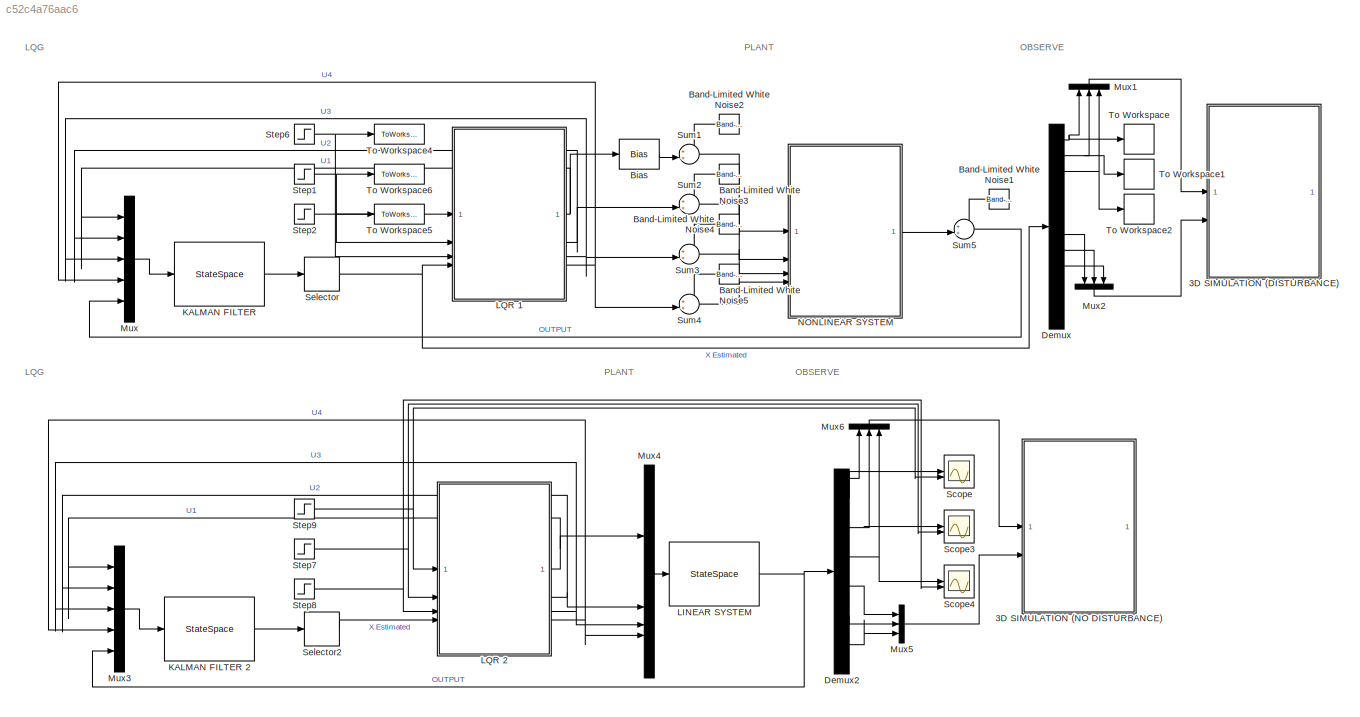
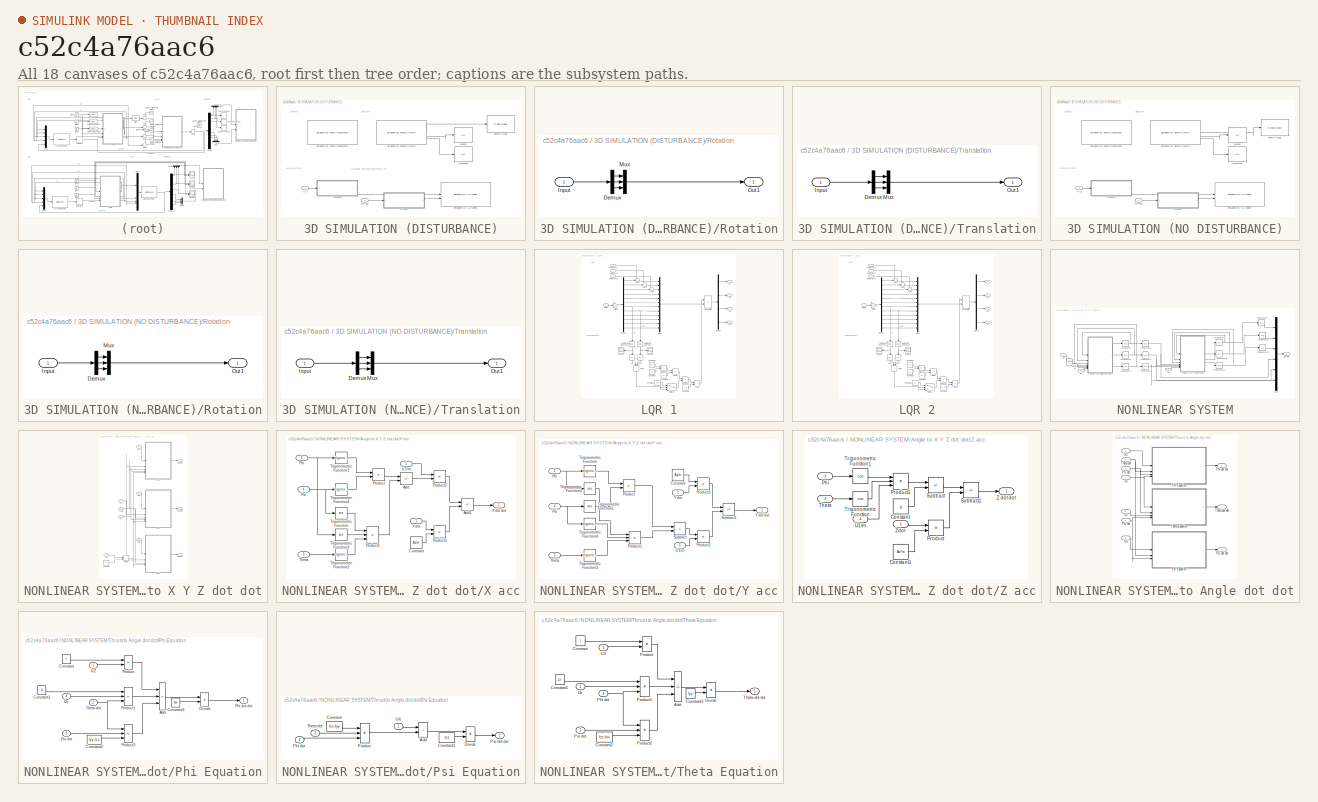
[diagram: thumbnail index - all 18 canvases of the model, root first then tree order]
MODEL slx_c52c4a76aac6
KIND model
CONFIG AbsTol = auto
CONFIG EnableMultiTasking = off
CONFIG FixedStep = auto
CONFIG MaxStep = auto
CONFIG MinStep = auto
CONFIG RelTol = 1e-3
CONFIG SampleTimeConstraint = Unconstrained
CONFIG SolverName = VariableStepAuto
CONFIG StartTime = 0.0
CONFIG StopTime = 20
BLOCK [SubSystem] 3D SIMULATION (DISTURBANCE)
BLOCK [Inport] 3D SIMULATION (DISTURBANCE)/ANGLES
  Port = 2
BLOCK [Reference] 3D SIMULATION (DISTURBANCE)/Fisheye Image  REF=visionsinks/To Video Display
  SourceBlock = visionsinks/To Video Display
  SourceType = To Video Display
BLOCK [Display] 3D SIMULATION (DISTURBANCE)/Location
  Decimation = 1
BLOCK [Display] 3D SIMULATION (DISTURBANCE)/Orientation
  Decimation = 1
BLOCK [SubSystem] 3D SIMULATION (DISTURBANCE)/Rotation
BLOCK [Demux] 3D SIMULATION (DISTURBANCE)/Rotation/Demux
  Outputs = 3
BLOCK [Inport] 3D SIMULATION (DISTURBANCE)/Rotation/Input
BLOCK [Mux] 3D SIMULATION (DISTURBANCE)/Rotation/Mux
  DisplayOption = bar
  Inputs = 3
BLOCK [Outport] 3D SIMULATION (DISTURBANCE)/Rotation/Out1
BLOCK [Reference] 3D SIMULATION (DISTURBANCE)/Simulation 3D Fisheye Camera  REF=sim3dcameralib/Simulation 3D Fisheye Camera
  Priority = 1
  SourceBlock = sim3dcameralib/Simulation 3D Fisheye Camera
  SourceType = Simulation 3D Fisheye Camera
BLOCK [Reference] 3D SIMULATION (DISTURBANCE)/Simulation 3D Scene Configuration  REF=sim3dlib/Simulation 3D Scene Configuration
  Priority = 0
  SourceBlock = sim3dlib/Simulation 3D Scene Configuration
  SourceType = Simulation 3D Scene Configuration
BLOCK [Reference] 3D SIMULATION (DISTURBANCE)/Simulation 3D UAV Vehicle  REF=uavsim3dlib/Simulation 3D UAV Vehicle
  SourceBlock = uavsim3dlib/Simulation 3D UAV Vehicle
  SourceType = Simulation 3D UAV Vehicle
BLOCK [SubSystem] 3D SIMULATION (DISTURBANCE)/Translation
BLOCK [Demux] 3D SIMULATION (DISTURBANCE)/Translation/Demux
  Outputs = 3
BLOCK [Inport] 3D SIMULATION (DISTURBANCE)/Translation/Input
BLOCK [Mux] 3D SIMULATION (DISTURBANCE)/Translation/Mux
  DisplayOption = bar
  Inputs = 3
BLOCK [Outport] 3D SIMULATION (DISTURBANCE)/Translation/Out1
BLOCK [Inport] 3D SIMULATION (DISTURBANCE)/X Y Z
BLOCK [SubSystem] 3D SIMULATION (NO DISTURBANCE)
  Commented = on
BLOCK [Inport] 3D SIMULATION (NO DISTURBANCE)/ANGLES
  Port = 2
BLOCK [Reference] 3D SIMULATION (NO DISTURBANCE)/Fisheye Image  REF=visionsinks/To Video Display
  SourceBlock = visionsinks/To Video Display
  SourceType = To Video Display
BLOCK [Display] 3D SIMULATION (NO DISTURBANCE)/Location
  Decimation = 1
BLOCK [Display] 3D SIMULATION (NO DISTURBANCE)/Orientation
  Decimation = 1
BLOCK [SubSystem] 3D SIMULATION (NO DISTURBANCE)/Rotation
BLOCK [Demux] 3D SIMULATION (NO DISTURBANCE)/Rotation/Demux
  Outputs = 3
BLOCK [Inport] 3D SIMULATION (NO DISTURBANCE)/Rotation/Input
BLOCK [Mux] 3D SIMULATION (NO DISTURBANCE)/Rotation/Mux
  DisplayOption = bar
  Inputs = 3
BLOCK [Outport] 3D SIMULATION (NO DISTURBANCE)/Rotation/Out1
BLOCK [Reference] 3D SIMULATION (NO DISTURBANCE)/Simulation 3D Fisheye Camera  REF=sim3dcameralib/Simulation 3D Fisheye Camera
  Priority = 1
  SourceBlock = sim3dcameralib/Simulation 3D Fisheye Camera
  SourceType = Simulation 3D Fisheye Camera
BLOCK [Reference] 3D SIMULATION (NO DISTURBANCE)/Simulation 3D Scene Configuration  REF=sim3dlib/Simulation 3D Scene Configuration
  Priority = 0
  SourceBlock = sim3dlib/Simulation 3D Scene Configuration
  SourceType = Simulation 3D Scene Configuration
BLOCK [Reference] 3D SIMULATION (NO DISTURBANCE)/Simulation 3D UAV Vehicle  REF=uavsim3dlib/Simulation 3D UAV Vehicle
  SourceBlock = uavsim3dlib/Simulation 3D UAV Vehicle
  SourceType = Simulation 3D UAV Vehicle
BLOCK [SubSystem] 3D SIMULATION (NO DISTURBANCE)/Translation
BLOCK [Demux] 3D SIMULATION (NO DISTURBANCE)/Translation/Demux
  Outputs = 3
BLOCK [Inport] 3D SIMULATION (NO DISTURBANCE)/Translation/Input
BLOCK [Mux] 3D SIMULATION (NO DISTURBANCE)/Translation/Mux
  DisplayOption = bar
  Inputs = 3
BLOCK [Outport] 3D SIMULATION (NO DISTURBANCE)/Translation/Out1
BLOCK [Inport] 3D SIMULATION (NO DISTURBANCE)/X Y Z
BLOCK [Reference] Band-Limited White Noise1  REF=simulink/Sources/Band-Limited
White Noise
  NameLocation = top
  SourceBlock = simulink/Sources/Band-Limited\nWhite Noise
  SourceType = Band-Limited White Noise.
BLOCK [Reference] Band-Limited White Noise2  REF=simulink/Sources/Band-Limited
White Noise
  NameLocation = top
  SourceBlock = simulink/Sources/Band-Limited\nWhite Noise
  SourceType = Band-Limited White Noise.
BLOCK [Reference] Band-Limited White Noise3  REF=simulink/Sources/Band-Limited
White Noise
  NameLocation = top
  SourceBlock = simulink/Sources/Band-Limited\nWhite Noise
  SourceType = Band-Limited White Noise.
BLOCK [Reference] Band-Limited White Noise4  REF=simulink/Sources/Band-Limited
White Noise
  NameLocation = top
  SourceBlock = simulink/Sources/Band-Limited\nWhite Noise
  SourceType = Band-Limited White Noise.
BLOCK [Reference] Band-Limited White Noise5  REF=simulink/Sources/Band-Limited
White Noise
  NameLocation = top
  SourceBlock = simulink/Sources/Band-Limited\nWhite Noise
  SourceType = Band-Limited White Noise.
BLOCK [Bias] Bias
  Bias = m*g
  SaturateOnIntegerOverflow = off
BLOCK [Demux] Demux
  Outputs = 12
BLOCK [Demux] Demux2
  Outputs = 6
BLOCK [StateSpace] KALMAN FILTER
  A = sysK.A
  B = sysK.B
  C = sysK.C
  D = sysK.D
  InitialCondition = 0
BLOCK [StateSpace] KALMAN FILTER 2
  A = sysK.A
  B = sysK.B
  C = sysK.C
  D = sysK.D
  InitialCondition = 0
BLOCK [StateSpace] LINEAR SYSTEM
  A = A
  B = B
  C = C
  D = D
  InitialCondition = 0
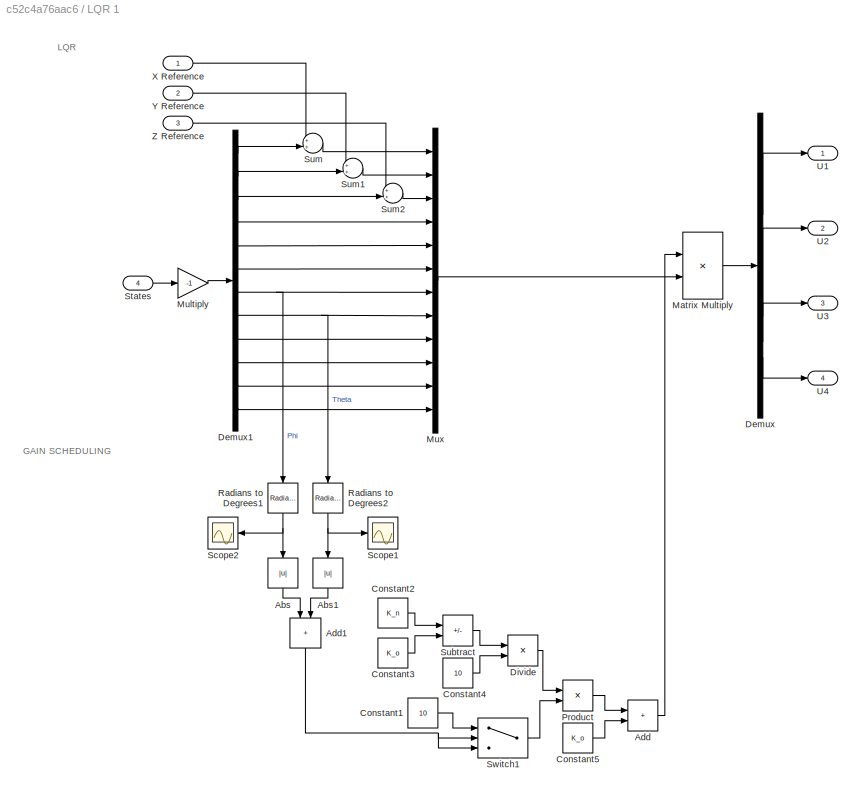
BLOCK [SubSystem] LQR 1
BLOCK [Abs] LQR 1/Abs
  NameLocation = left
  SaturateOnIntegerOverflow = off
BLOCK [Abs] LQR 1/Abs1
  NameLocation = left
  SaturateOnIntegerOverflow = off
BLOCK [Sum] LQR 1/Add
  IconShape = rectangular
BLOCK [Sum] LQR 1/Add1
  IconShape = rectangular
  NameLocation = left
BLOCK [Constant] LQR 1/Constant1
  Value = 10
BLOCK [Constant] LQR 1/Constant2
  Value = K_n
BLOCK [Constant] LQR 1/Constant3
  Value = K_o
BLOCK [Constant] LQR 1/Constant4
  Value = 10
BLOCK [Constant] LQR 1/Constant5
  Value = K_o
BLOCK [Demux] LQR 1/Demux
BLOCK [Demux] LQR 1/Demux1
  Outputs = 12
BLOCK [Product] LQR 1/Divide
  Inputs = */
BLOCK [Product] LQR 1/Matrix Multiply
  Multiplication = Matrix(*)
BLOCK [Gain] LQR 1/Multiply
  Gain = -1
BLOCK [Mux] LQR 1/Mux
  DisplayOption = bar
  Inputs = 12
BLOCK [Product] LQR 1/Product
BLOCK [Reference] LQR 1/Radians to Degrees1  REF=simulink_extras/Transformations/Radians
to Degrees
  NameLocation = left
  SourceBlock = simulink_extras/Transformations/Radians\nto Degrees
  SourceType = RadiansToDegrees
BLOCK [Reference] LQR 1/Radians to Degrees2  REF=simulink_extras/Transformations/Radians
to Degrees
  NameLocation = left
  SourceBlock = simulink_extras/Transformations/Radians\nto Degrees
  SourceType = RadiansToDegrees
BLOCK [Scope] LQR 1/Scope1
  Floating = off
  NumInputPorts = 1
  ScopeSpecificationString = Simulink.scopes.TimeScopeBlockCfg('CurrentConfiguration', extmgr.ConfigurationSet(extmgr.Configuration('Core','General UI',true),extmgr.Configuration('Core','Source UI',true),extmgr.Configuration('Sources','WiredSimulink',true,'DataLoggingVariableName','ScopeData7'),extmgr.Configuration('Visuals','Time Domain',true,'SerializedDisplays',{struct('MinYLimReal','-29.51608','MaxYLimReal','30.71325','YL...<+1384ch>
BLOCK [Scope] LQR 1/Scope2
  Floating = off
  NameLocation = top
  NumInputPorts = 1
  ScopeSpecificationString = Simulink.scopes.TimeScopeBlockCfg('CurrentConfiguration', extmgr.ConfigurationSet(extmgr.Configuration('Core','General UI',true),extmgr.Configuration('Core','Source UI',true),extmgr.Configuration('Sources','WiredSimulink',true,'DataLoggingVariableName','ScopeData8'),extmgr.Configuration('Visuals','Time Domain',true,'SerializedDisplays',{struct('MinYLimReal','-36.9835','MaxYLimReal','35.28353','YLa...<+1380ch>
BLOCK [Inport] LQR 1/States
  Port = 4
BLOCK [Sum] LQR 1/Subtract
  IconShape = rectangular
  Inputs = +-
BLOCK [Sum] LQR 1/Sum
  Inputs = ++|
BLOCK [Sum] LQR 1/Sum1
  Inputs = ++|
BLOCK [Sum] LQR 1/Sum2
  Inputs = ++|
BLOCK [Switch] LQR 1/Switch1
  Criteria = u2 > Threshold
  InputSameDT = off
  SaturateOnIntegerOverflow = off
  Threshold = 10
BLOCK [Outport] LQR 1/U1
BLOCK [Outport] LQR 1/U2
  Port = 2
BLOCK [Outport] LQR 1/U3
  Port = 3
BLOCK [Outport] LQR 1/U4
  Port = 4
BLOCK [Inport] LQR 1/X Reference
BLOCK [Inport] LQR 1/Y Reference
  Port = 2
BLOCK [Inport] LQR 1/Z Reference
  Port = 3
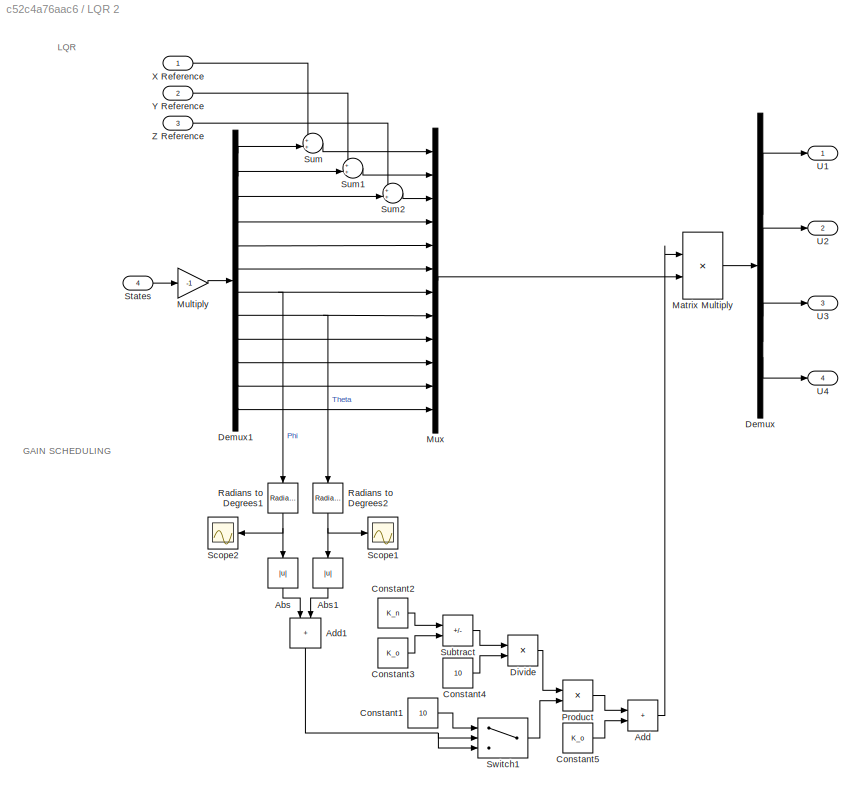
BLOCK [SubSystem] LQR 2
BLOCK [Abs] LQR 2/Abs
  NameLocation = left
  SaturateOnIntegerOverflow = off
BLOCK [Abs] LQR 2/Abs1
  NameLocation = left
  SaturateOnIntegerOverflow = off
BLOCK [Sum] LQR 2/Add
  IconShape = rectangular
BLOCK [Sum] LQR 2/Add1
  IconShape = rectangular
  NameLocation = left
BLOCK [Constant] LQR 2/Constant1
  Value = 10
BLOCK [Constant] LQR 2/Constant2
  Value = K_n
BLOCK [Constant] LQR 2/Constant3
  Value = K_o
BLOCK [Constant] LQR 2/Constant4
  Value = 10
BLOCK [Constant] LQR 2/Constant5
  Value = K_o
BLOCK [Demux] LQR 2/Demux
BLOCK [Demux] LQR 2/Demux1
  Outputs = 12
BLOCK [Product] LQR 2/Divide
  Inputs = */
BLOCK [Product] LQR 2/Matrix Multiply
  Multiplication = Matrix(*)
BLOCK [Gain] LQR 2/Multiply
  Gain = -1
BLOCK [Mux] LQR 2/Mux
  DisplayOption = bar
  Inputs = 12
BLOCK [Product] LQR 2/Product
BLOCK [Reference] LQR 2/Radians to Degrees1  REF=simulink_extras/Transformations/Radians
to Degrees
  NameLocation = left
  SourceBlock = simulink_extras/Transformations/Radians\nto Degrees
  SourceType = RadiansToDegrees
BLOCK [Reference] LQR 2/Radians to Degrees2  REF=simulink_extras/Transformations/Radians
to Degrees
  NameLocation = left
  SourceBlock = simulink_extras/Transformations/Radians\nto Degrees
  SourceType = RadiansToDegrees
BLOCK [Scope] LQR 2/Scope1
  Floating = off
  NumInputPorts = 1
  ScopeSpecificationString = Simulink.scopes.TimeScopeBlockCfg('CurrentConfiguration', extmgr.ConfigurationSet(extmgr.Configuration('Core','General UI',true),extmgr.Configuration('Core','Source UI',true),extmgr.Configuration('Sources','WiredSimulink',true,'DataLoggingVariableName','ScopeData1'),extmgr.Configuration('Visuals','Time Domain',true,'SerializedDisplays',{struct('MinYLimReal','-29.51608','MaxYLimReal','30.71325','YL...<+1384ch>
BLOCK [Scope] LQR 2/Scope2
  Floating = off
  NameLocation = top
  NumInputPorts = 1
  ScopeSpecificationString = Simulink.scopes.TimeScopeBlockCfg('CurrentConfiguration', extmgr.ConfigurationSet(extmgr.Configuration('Core','General UI',true),extmgr.Configuration('Core','Source UI',true),extmgr.Configuration('Sources','WiredSimulink',true,'DataLoggingVariableName','ScopeData2'),extmgr.Configuration('Visuals','Time Domain',true,'SerializedDisplays',{struct('MinYLimReal','-36.9835','MaxYLimReal','35.28353','YLa...<+1380ch>
BLOCK [Inport] LQR 2/States
  Port = 4
BLOCK [Sum] LQR 2/Subtract
  IconShape = rectangular
  Inputs = +-
BLOCK [Sum] LQR 2/Sum
  Inputs = ++|
BLOCK [Sum] LQR 2/Sum1
  Inputs = ++|
BLOCK [Sum] LQR 2/Sum2
  Inputs = ++|
BLOCK [Switch] LQR 2/Switch1
  Criteria = u2 > Threshold
  InputSameDT = off
  SaturateOnIntegerOverflow = off
  Threshold = 10
BLOCK [Outport] LQR 2/U1
BLOCK [Outport] LQR 2/U2
  Port = 2
BLOCK [Outport] LQR 2/U3
  Port = 3
BLOCK [Outport] LQR 2/U4
  Port = 4
BLOCK [Inport] LQR 2/X Reference
BLOCK [Inport] LQR 2/Y Reference
  Port = 2
BLOCK [Inport] LQR 2/Z Reference
  Port = 3
BLOCK [Mux] Mux
  DisplayOption = bar
  Inputs = 5
BLOCK [Mux] Mux1
  DisplayOption = bar
  Inputs = 3
  NameLocation = right
BLOCK [Mux] Mux2
  DisplayOption = bar
  Inputs = 3
  NameLocation = left
BLOCK [Mux] Mux3
  DisplayOption = bar
  Inputs = 5
BLOCK [Mux] Mux4
  DisplayOption = bar
BLOCK [Mux] Mux5
  DisplayOption = bar
  Inputs = 3
BLOCK [Mux] Mux6
  DisplayOption = bar
  Inputs = 3
  NameLocation = right
BLOCK [SubSystem] NONLINEAR SYSTEM
  PortSchema = {"entries":[{"content":{"sides":[{"content":{"connectorIds":["In1","In2","In3","In4"]},"type":"ConnectorPlacement.EquallySpacedRectSide","uuid":"a5503451-5a23-4017-b645-9eb3d3f2dd65"},{"content":{"connectorIds":["Out1"],"side":"RIGHT"},"type":"ConnectorPlacement.EquallySpacedRectSide","uuid":"5f9284f0-a452-4177-bce3-aee519bf0d63"},{"content":{"side":"TOP"},"type":"ConnectorPlacement.EquallySpacedR...<+389ch>
BLOCK [SubSystem] NONLINEAR SYSTEM/Angle to X Y Z dot dot
BLOCK [Constant] NONLINEAR SYSTEM/Angle to X Y Z dot dot/Constant
  Value = m
BLOCK [Product] NONLINEAR SYSTEM/Angle to X Y Z dot dot/Divide
  Inputs = */
BLOCK [Inport] NONLINEAR SYSTEM/Angle to X Y Z dot dot/Phi
  Port = 4
BLOCK [Inport] NONLINEAR SYSTEM/Angle to X Y Z dot dot/Psi
  Port = 6
BLOCK [Inport] NONLINEAR SYSTEM/Angle to X Y Z dot dot/Theta
  Port = 5
BLOCK [Inport] NONLINEAR SYSTEM/Angle to X Y Z dot dot/U1
  Port = 7
BLOCK [SubSystem] NONLINEAR SYSTEM/Angle to X Y Z dot dot/X acc
BLOCK [Sum] NONLINEAR SYSTEM/Angle to X Y Z dot dot/X acc/Add
  IconShape = rectangular
  Inputs = +-
BLOCK [Sum] NONLINEAR SYSTEM/Angle to X Y Z dot dot/X acc/Add1
  IconShape = rectangular
  Inputs = +-
BLOCK [Constant] NONLINEAR SYSTEM/Angle to X Y Z dot dot/X acc/Constant
  Value = Ax/m
BLOCK [Inport] NONLINEAR SYSTEM/Angle to X Y Z dot dot/X acc/Phi
  Port = 2
BLOCK [Product] NONLINEAR SYSTEM/Angle to X Y Z dot dot/X acc/Product
BLOCK [Product] NONLINEAR SYSTEM/Angle to X Y Z dot dot/X acc/Product1
  Inputs = 3
BLOCK [Product] NONLINEAR SYSTEM/Angle to X Y Z dot dot/X acc/Product2
BLOCK [Product] NONLINEAR SYSTEM/Angle to X Y Z dot dot/X acc/Product3
BLOCK [Inport] NONLINEAR SYSTEM/Angle to X Y Z dot dot/X acc/Psi
  Port = 4
BLOCK [Inport] NONLINEAR SYSTEM/Angle to X Y Z dot dot/X acc/Theta
  Port = 3
BLOCK [Trigonometry] NONLINEAR SYSTEM/Angle to X Y Z dot dot/X acc/Trigonometric Function
  Operator = cos
BLOCK [Trigonometry] NONLINEAR SYSTEM/Angle to X Y Z dot dot/X acc/Trigonometric Function1
BLOCK [Trigonometry] NONLINEAR SYSTEM/Angle to X Y Z dot dot/X acc/Trigonometric Function2
BLOCK [Trigonometry] NONLINEAR SYSTEM/Angle to X Y Z dot dot/X acc/Trigonometric Function3
  Operator = cos
BLOCK [Trigonometry] NONLINEAR SYSTEM/Angle to X Y Z dot dot/X acc/Trigonometric Function4
BLOCK [Inport] NONLINEAR SYSTEM/Angle to X Y Z dot dot/X acc/U1//m
  Port = 5
BLOCK [Inport] NONLINEAR SYSTEM/Angle to X Y Z dot dot/X acc/X dot
BLOCK [Outport] NONLINEAR SYSTEM/Angle to X Y Z dot dot/X acc/X dot dot
BLOCK [Inport] NONLINEAR SYSTEM/Angle to X Y Z dot dot/X dot
BLOCK [Outport] NONLINEAR SYSTEM/Angle to X Y Z dot dot/X dot dot
BLOCK [SubSystem] NONLINEAR SYSTEM/Angle to X Y Z dot dot/Y acc
BLOCK [Constant] NONLINEAR SYSTEM/Angle to X Y Z dot dot/Y acc/Constant
  Value = Ay/m
BLOCK [Inport] NONLINEAR SYSTEM/Angle to X Y Z dot dot/Y acc/Phi
  Port = 2
BLOCK [Product] NONLINEAR SYSTEM/Angle to X Y Z dot dot/Y acc/Product
BLOCK [Product] NONLINEAR SYSTEM/Angle to X Y Z dot dot/Y acc/Product1
  Inputs = 3
BLOCK [Product] NONLINEAR SYSTEM/Angle to X Y Z dot dot/Y acc/Product2
BLOCK [Product] NONLINEAR SYSTEM/Angle to X Y Z dot dot/Y acc/Product3
BLOCK [Inport] NONLINEAR SYSTEM/Angle to X Y Z dot dot/Y acc/Psi
  Port = 4
BLOCK [Sum] NONLINEAR SYSTEM/Angle to X Y Z dot dot/Y acc/Subtract
  IconShape = rectangular
BLOCK [Sum] NONLINEAR SYSTEM/Angle to X Y Z dot dot/Y acc/Subtract1
  IconShape = rectangular
  Inputs = -+
BLOCK [Inport] NONLINEAR SYSTEM/Angle to X Y Z dot dot/Y acc/Theta
  Port = 3
BLOCK [Trigonometry] NONLINEAR SYSTEM/Angle to X Y Z dot dot/Y acc/Trigonometric Function
BLOCK [Trigonometry] NONLINEAR SYSTEM/Angle to X Y Z dot dot/Y acc/Trigonometric Function1
  Operator = cos
BLOCK [Trigonometry] NONLINEAR SYSTEM/Angle to X Y Z dot dot/Y acc/Trigonometric Function2
  Operator = cos
BLOCK [Trigonometry] NONLINEAR SYSTEM/Angle to X Y Z dot dot/Y acc/Trigonometric Function3
BLOCK [Trigonometry] NONLINEAR SYSTEM/Angle to X Y Z dot dot/Y acc/Trigonometric Function4
BLOCK [Inport] NONLINEAR SYSTEM/Angle to X Y Z dot dot/Y acc/U1//m
  Port = 5
BLOCK [Inport] NONLINEAR SYSTEM/Angle to X Y Z dot dot/Y acc/Y dot
BLOCK [Outport] NONLINEAR SYSTEM/Angle to X Y Z dot dot/Y acc/Y dot dot
BLOCK [Inport] NONLINEAR SYSTEM/Angle to X Y Z dot dot/Y dot
  Port = 2
BLOCK [Outport] NONLINEAR SYSTEM/Angle to X Y Z dot dot/Y dot dot
  Port = 2
BLOCK [SubSystem] NONLINEAR SYSTEM/Angle to X Y Z dot dot/Z acc
BLOCK [Constant] NONLINEAR SYSTEM/Angle to X Y Z dot dot/Z acc/Constant
  Value = g
BLOCK [Constant] NONLINEAR SYSTEM/Angle to X Y Z dot dot/Z acc/Constant1
  Value = Az*m
BLOCK [Inport] NONLINEAR SYSTEM/Angle to X Y Z dot dot/Z acc/Phi
  Port = 2
BLOCK [Product] NONLINEAR SYSTEM/Angle to X Y Z dot dot/Z acc/Product
BLOCK [Product] NONLINEAR SYSTEM/Angle to X Y Z dot dot/Z acc/Product1
  Inputs = 3
BLOCK [Sum] NONLINEAR SYSTEM/Angle to X Y Z dot dot/Z acc/Subtract
  IconShape = rectangular
  Inputs = +-
BLOCK [Sum] NONLINEAR SYSTEM/Angle to X Y Z dot dot/Z acc/Subtract1
  IconShape = rectangular
  Inputs = +-
BLOCK [Inport] NONLINEAR SYSTEM/Angle to X Y Z dot dot/Z acc/Theta
  Port = 3
BLOCK [Trigonometry] NONLINEAR SYSTEM/Angle to X Y Z dot dot/Z acc/Trigonometric Function
  Operator = cos
BLOCK [Trigonometry] NONLINEAR SYSTEM/Angle to X Y Z dot dot/Z acc/Trigonometric Function1
  Operator = cos
BLOCK [Inport] NONLINEAR SYSTEM/Angle to X Y Z dot dot/Z acc/U1//m
  Port = 4
BLOCK [Outport] NONLINEAR SYSTEM/Angle to X Y Z dot dot/Z acc/Z dot dot
BLOCK [Inport] NONLINEAR SYSTEM/Angle to X Y Z dot dot/Z acc/Zdot
BLOCK [Inport] NONLINEAR SYSTEM/Angle to X Y Z dot dot/Z dot
  Port = 3
BLOCK [Outport] NONLINEAR SYSTEM/Angle to X Y Z dot dot/Z dot dot
  Port = 3
BLOCK [Integrator] NONLINEAR SYSTEM/Integrator
BLOCK [Integrator] NONLINEAR SYSTEM/Integrator1
BLOCK [Integrator] NONLINEAR SYSTEM/Integrator10
  LimitOutput = on
  LowerSaturationLimit = 0
BLOCK [Integrator] NONLINEAR SYSTEM/Integrator11
BLOCK [Integrator] NONLINEAR SYSTEM/Integrator2
BLOCK [Integrator] NONLINEAR SYSTEM/Integrator3
  WrapState = on
BLOCK [Integrator] NONLINEAR SYSTEM/Integrator4
  LowerSaturationLimit = -pi
  UpperSaturationLimit = pi
  WrapState = on
BLOCK [Integrator] NONLINEAR SYSTEM/Integrator5
  WrapState = on
BLOCK [Integrator] NONLINEAR SYSTEM/Integrator6
BLOCK [Integrator] NONLINEAR SYSTEM/Integrator7
BLOCK [Integrator] NONLINEAR SYSTEM/Integrator8
BLOCK [Integrator] NONLINEAR SYSTEM/Integrator9
BLOCK [Mux] NONLINEAR SYSTEM/Mux
  DisplayOption = bar
  Inputs = 6
BLOCK [Outport] NONLINEAR SYSTEM/Output 
BLOCK [SubSystem] NONLINEAR SYSTEM/Thrust to Angle dot dot
BLOCK [SubSystem] NONLINEAR SYSTEM/Thrust to Angle dot dot/Phi Equation
BLOCK [Sum] NONLINEAR SYSTEM/Thrust to Angle dot dot/Phi Equation/Add
  IconShape = rectangular
  Inputs = +++
BLOCK [Constant] NONLINEAR SYSTEM/Thrust to Angle dot dot/Phi Equation/Constant
  Value = l
BLOCK [Constant] NONLINEAR SYSTEM/Thrust to Angle dot dot/Phi Equation/Constant1
  Value = Jr
BLOCK [Constant] NONLINEAR SYSTEM/Thrust to Angle dot dot/Phi Equation/Constant2
  Value = Iyy-Izz
BLOCK [Constant] NONLINEAR SYSTEM/Thrust to Angle dot dot/Phi Equation/Constant3
  Value = Ixx
BLOCK [Product] NONLINEAR SYSTEM/Thrust to Angle dot dot/Phi Equation/Divide
  Inputs = */
BLOCK [Outport] NONLINEAR SYSTEM/Thrust to Angle dot dot/Phi Equation/Phi dot dot
BLOCK [Product] NONLINEAR SYSTEM/Thrust to Angle dot dot/Phi Equation/Product
BLOCK [Product] NONLINEAR SYSTEM/Thrust to Angle dot dot/Phi Equation/Product1
  Inputs = 3
BLOCK [Product] NONLINEAR SYSTEM/Thrust to Angle dot dot/Phi Equation/Product3
  Inputs = 3
BLOCK [Inport] NONLINEAR SYSTEM/Thrust to Angle dot dot/Phi Equation/Psi dot
  Port = 3
BLOCK [Inport] NONLINEAR SYSTEM/Thrust to Angle dot dot/Phi Equation/Theta dot
  Port = 2
BLOCK [Inport] NONLINEAR SYSTEM/Thrust to Angle dot dot/Phi Equation/U2
BLOCK [Inport] NONLINEAR SYSTEM/Thrust to Angle dot dot/Phi Equation/Ωr
  Port = 4
BLOCK [Inport] NONLINEAR SYSTEM/Thrust to Angle dot dot/Phi dot
BLOCK [Outport] NONLINEAR SYSTEM/Thrust to Angle dot dot/Phi dot dot
BLOCK [SubSystem] NONLINEAR SYSTEM/Thrust to Angle dot dot/Psi Equation
BLOCK [Sum] NONLINEAR SYSTEM/Thrust to Angle dot dot/Psi Equation/Add
  IconShape = rectangular
BLOCK [Constant] NONLINEAR SYSTEM/Thrust to Angle dot dot/Psi Equation/Constant
  Value = Ixx-Iyy
BLOCK [Constant] NONLINEAR SYSTEM/Thrust to Angle dot dot/Psi Equation/Constant1
  Value = Izz
BLOCK [Product] NONLINEAR SYSTEM/Thrust to Angle dot dot/Psi Equation/Divide
  Inputs = */
BLOCK [Inport] NONLINEAR SYSTEM/Thrust to Angle dot dot/Psi Equation/Phi  dot
  Port = 3
BLOCK [Product] NONLINEAR SYSTEM/Thrust to Angle dot dot/Psi Equation/Product
  Inputs = 3
BLOCK [Outport] NONLINEAR SYSTEM/Thrust to Angle dot dot/Psi Equation/Psi dot dot
BLOCK [Inport] NONLINEAR SYSTEM/Thrust to Angle dot dot/Psi Equation/Theta dot
  Port = 2
BLOCK [Inport] NONLINEAR SYSTEM/Thrust to Angle dot dot/Psi Equation/U4
BLOCK [Inport] NONLINEAR SYSTEM/Thrust to Angle dot dot/Psi dot
  Port = 3
BLOCK [Outport] NONLINEAR SYSTEM/Thrust to Angle dot dot/Psi dot dot
  Port = 3
BLOCK [SubSystem] NONLINEAR SYSTEM/Thrust to Angle dot dot/Theta Equation
BLOCK [Sum] NONLINEAR SYSTEM/Thrust to Angle dot dot/Theta Equation/Add
  IconShape = rectangular
  Inputs = +-+
BLOCK [Constant] NONLINEAR SYSTEM/Thrust to Angle dot dot/Theta Equation/Constant
  Value = l
BLOCK [Constant] NONLINEAR SYSTEM/Thrust to Angle dot dot/Theta Equation/Constant1
  Value = Jr
BLOCK [Constant] NONLINEAR SYSTEM/Thrust to Angle dot dot/Theta Equation/Constant2
  Value = Izz-Ixx
BLOCK [Constant] NONLINEAR SYSTEM/Thrust to Angle dot dot/Theta Equation/Constant3
  Value = Iyy
BLOCK [Product] NONLINEAR SYSTEM/Thrust to Angle dot dot/Theta Equation/Divide
  Inputs = */
BLOCK [Inport] NONLINEAR SYSTEM/Thrust to Angle dot dot/Theta Equation/Phi dot
  Port = 4
BLOCK [Product] NONLINEAR SYSTEM/Thrust to Angle dot dot/Theta Equation/Product
BLOCK [Product] NONLINEAR SYSTEM/Thrust to Angle dot dot/Theta Equation/Product1
  Inputs = 3
BLOCK [Product] NONLINEAR SYSTEM/Thrust to Angle dot dot/Theta Equation/Product2
  Inputs = 3
BLOCK [Inport] NONLINEAR SYSTEM/Thrust to Angle dot dot/Theta Equation/Psi dot
  Port = 2
BLOCK [Outport] NONLINEAR SYSTEM/Thrust to Angle dot dot/Theta Equation/Theta dot dot
BLOCK [Inport] NONLINEAR SYSTEM/Thrust to Angle dot dot/Theta Equation/U3
  Port = 3
BLOCK [Inport] NONLINEAR SYSTEM/Thrust to Angle dot dot/Theta Equation/Ωr
BLOCK [Inport] NONLINEAR SYSTEM/Thrust to Angle dot dot/Theta dot
  Port = 2
BLOCK [Outport] NONLINEAR SYSTEM/Thrust to Angle dot dot/Theta dot dot
  Port = 2
BLOCK [Inport] NONLINEAR SYSTEM/Thrust to Angle dot dot/U2
  Port = 4
BLOCK [Inport] NONLINEAR SYSTEM/Thrust to Angle dot dot/U3
  Port = 5
BLOCK [Inport] NONLINEAR SYSTEM/Thrust to Angle dot dot/U4
  Port = 6
BLOCK [Inport] NONLINEAR SYSTEM/Thrust to Angle dot dot/Ωr
  Port = 7
BLOCK [Inport] NONLINEAR SYSTEM/U1
BLOCK [Inport] NONLINEAR SYSTEM/U2
  Port = 2
BLOCK [Inport] NONLINEAR SYSTEM/U3
  Port = 3
BLOCK [Inport] NONLINEAR SYSTEM/U4
  Port = 4
BLOCK [Inport] NONLINEAR SYSTEM/Ωr
  Port = 5
BLOCK [Scope] Scope
  Floating = off
  NumInputPorts = 2
  ScopeSpecificationString = Simulink.scopes.TimeScopeBlockCfg('CurrentConfiguration', extmgr.ConfigurationSet(extmgr.Configuration('Core','General UI',true),extmgr.Configuration('Core','Source UI',true),extmgr.Configuration('Sources','WiredSimulink',true,'DataLoggingVariableName','ScopeData1'),extmgr.Configuration('Visuals','Time Domain',true,'SerializedDisplays',{struct('MinYLimReal','-0.625','MaxYLimReal','5.625','YLabelRe...<+1363ch>
BLOCK [Scope] Scope3
  Floating = off
  NumInputPorts = 2
  ScopeSpecificationString = Simulink.scopes.TimeScopeBlockCfg('CurrentConfiguration', extmgr.ConfigurationSet(extmgr.Configuration('Core','General UI',true),extmgr.Configuration('Core','Source UI',true),extmgr.Configuration('Sources','WiredSimulink',true,'DataLoggingVariableName','ScopeData2'),extmgr.Configuration('Visuals','Time Domain',true,'SerializedDisplays',{struct('MinYLimReal','-0.625','MaxYLimReal','5.625','YLabelRe...<+1363ch>
BLOCK [Scope] Scope4
  Floating = off
  NumInputPorts = 2
  ScopeSpecificationString = Simulink.scopes.TimeScopeBlockCfg('CurrentConfiguration', extmgr.ConfigurationSet(extmgr.Configuration('Core','General UI',true),extmgr.Configuration('Core','Source UI',true),extmgr.Configuration('Sources','WiredSimulink',true,'DataLoggingVariableName','ScopeData3'),extmgr.Configuration('Visuals','Time Domain',true,'SerializedDisplays',{struct('MinYLimReal','-1.25','MaxYLimReal','11.25','YLabelRea...<+1361ch>
BLOCK [Selector] Selector
  IndexOptions = Index vector (dialog)
  Indices = [7:18]
  InputPortWidth = 18
  OutputSizes = 1
BLOCK [Selector] Selector2
  IndexOptions = Index vector (dialog)
  Indices = [7:18]
  InputPortWidth = 18
  OutputSizes = 1
BLOCK [Step] Step1
  After = 25
  SampleTime = 0
  Time = 5
BLOCK [Step] Step2
  After = 31
  SampleTime = 0
BLOCK [Step] Step6
  After = 31
  SampleTime = 0
  Time = 10
BLOCK [Step] Step7
  After = 8
  SampleTime = 0
  Time = 5
BLOCK [Step] Step8
  After = 10
  SampleTime = 0
BLOCK [Step] Step9
  After = 8
  SampleTime = 0
  Time = 10
BLOCK [Sum] Sum1
  Inputs = ++|
BLOCK [Sum] Sum2
  Inputs = ++|
BLOCK [Sum] Sum3
  Inputs = ++|
BLOCK [Sum] Sum4
  Inputs = ++|
BLOCK [Sum] Sum5
  Inputs = ++|
BLOCK [ToWorkspace] To Workspace
  FixptAsFi = on
  MaxDataPoints = inf
  SampleTime = -1
  SaveFormat = Timeseries
  VariableName = X
BLOCK [ToWorkspace] To Workspace1
  FixptAsFi = on
  MaxDataPoints = inf
  SampleTime = -1
  SaveFormat = Timeseries
  VariableName = Y
BLOCK [ToWorkspace] To Workspace2
  FixptAsFi = on
  MaxDataPoints = inf
  SampleTime = -1
  SaveFormat = Timeseries
  VariableName = Z
BLOCK [ToWorkspace] To Workspace4
  FixptAsFi = on
  MaxDataPoints = inf
  SampleTime = -1
  SaveFormat = Timeseries
  VariableName = R_x
BLOCK [ToWorkspace] To Workspace5
  FixptAsFi = on
  MaxDataPoints = inf
  SampleTime = -1
  SaveFormat = Timeseries
  VariableName = R_z
BLOCK [ToWorkspace] To Workspace6
  FixptAsFi = on
  MaxDataPoints = inf
  SampleTime = -1
  SaveFormat = Timeseries
  VariableName = R_y
ANNOTATION (root): LQG
ANNOTATION (root): OBSERVE
ANNOTATION (root): PLANT
ANNOTATION 3D SIMULATION (DISTURBANCE): <copyright redacted>
ANNOTATION 3D SIMULATION (DISTURBANCE): QUADROTOR
ANNOTATION 3D SIMULATION (DISTURBANCE): SCENE
ANNOTATION 3D SIMULATION (DISTURBANCE): SENSOR
ANNOTATION 3D SIMULATION (NO DISTURBANCE): QUADROTOR
ANNOTATION 3D SIMULATION (NO DISTURBANCE): SCENE
ANNOTATION 3D SIMULATION (NO DISTURBANCE): SENSOR
ANNOTATION LQR 1: GAIN SCHEDULING
ANNOTATION LQR 1: LQR
ANNOTATION LQR 2: GAIN SCHEDULING
ANNOTATION LQR 2: LQR
LINE 3D SIMULATION (DISTURBANCE)/ANGLES:1 -> 3D SIMULATION (DISTURBANCE)/Rotation:1
LINE 3D SIMULATION (DISTURBANCE)/Rotation/Demux:1 -> 3D SIMULATION (DISTURBANCE)/Rotation/Mux:1
LINE 3D SIMULATION (DISTURBANCE)/Rotation/Demux:2 -> 3D SIMULATION (DISTURBANCE)/Rotation/Mux:2
LINE 3D SIMULATION (DISTURBANCE)/Rotation/Demux:3 -> 3D SIMULATION (DISTURBANCE)/Rotation/Mux:3
LINE 3D SIMULATION (DISTURBANCE)/Rotation/Input:1 -> 3D SIMULATION (DISTURBANCE)/Rotation/Demux:1
LINE 3D SIMULATION (DISTURBANCE)/Rotation/Mux:1 -> 3D SIMULATION (DISTURBANCE)/Rotation/Out1:1
LINE 3D SIMULATION (DISTURBANCE)/Rotation:1 -> 3D SIMULATION (DISTURBANCE)/Simulation 3D UAV Vehicle:2
LINE 3D SIMULATION (DISTURBANCE)/Simulation 3D Fisheye Camera:1 -> 3D SIMULATION (DISTURBANCE)/Fisheye Image:1
LINE 3D SIMULATION (DISTURBANCE)/Simulation 3D Fisheye Camera:2 -> 3D SIMULATION (DISTURBANCE)/Location:1
LINE 3D SIMULATION (DISTURBANCE)/Simulation 3D Fisheye Camera:3 -> 3D SIMULATION (DISTURBANCE)/Orientation:1
LINE 3D SIMULATION (DISTURBANCE)/Translation/Demux:1 -> 3D SIMULATION (DISTURBANCE)/Translation/Mux:1
LINE 3D SIMULATION (DISTURBANCE)/Translation/Demux:2 -> 3D SIMULATION (DISTURBANCE)/Translation/Mux:2
LINE 3D SIMULATION (DISTURBANCE)/Translation/Demux:3 -> 3D SIMULATION (DISTURBANCE)/Translation/Mux:3
LINE 3D SIMULATION (DISTURBANCE)/Translation/Input:1 -> 3D SIMULATION (DISTURBANCE)/Translation/Demux:1
LINE 3D SIMULATION (DISTURBANCE)/Translation/Mux:1 -> 3D SIMULATION (DISTURBANCE)/Translation/Out1:1
LINE 3D SIMULATION (DISTURBANCE)/Translation:1 -> 3D SIMULATION (DISTURBANCE)/Simulation 3D UAV Vehicle:1
LINE 3D SIMULATION (DISTURBANCE)/X Y Z:1 -> 3D SIMULATION (DISTURBANCE)/Translation:1
LINE 3D SIMULATION (NO DISTURBANCE)/ANGLES:1 -> 3D SIMULATION (NO DISTURBANCE)/Rotation:1
LINE 3D SIMULATION (NO DISTURBANCE)/Rotation/Demux:1 -> 3D SIMULATION (NO DISTURBANCE)/Rotation/Mux:1
LINE 3D SIMULATION (NO DISTURBANCE)/Rotation/Demux:2 -> 3D SIMULATION (NO DISTURBANCE)/Rotation/Mux:2
LINE 3D SIMULATION (NO DISTURBANCE)/Rotation/Demux:3 -> 3D SIMULATION (NO DISTURBANCE)/Rotation/Mux:3
LINE 3D SIMULATION (NO DISTURBANCE)/Rotation/Input:1 -> 3D SIMULATION (NO DISTURBANCE)/Rotation/Demux:1
LINE 3D SIMULATION (NO DISTURBANCE)/Rotation/Mux:1 -> 3D SIMULATION (NO DISTURBANCE)/Rotation/Out1:1
LINE 3D SIMULATION (NO DISTURBANCE)/Rotation:1 -> 3D SIMULATION (NO DISTURBANCE)/Simulation 3D UAV Vehicle:2
LINE 3D SIMULATION (NO DISTURBANCE)/Simulation 3D Fisheye Camera:1 -> 3D SIMULATION (NO DISTURBANCE)/Fisheye Image:1
LINE 3D SIMULATION (NO DISTURBANCE)/Simulation 3D Fisheye Camera:2 -> 3D SIMULATION (NO DISTURBANCE)/Location:1
LINE 3D SIMULATION (NO DISTURBANCE)/Simulation 3D Fisheye Camera:3 -> 3D SIMULATION (NO DISTURBANCE)/Orientation:1
LINE 3D SIMULATION (NO DISTURBANCE)/Translation/Demux:1 -> 3D SIMULATION (NO DISTURBANCE)/Translation/Mux:1
LINE 3D SIMULATION (NO DISTURBANCE)/Translation/Demux:2 -> 3D SIMULATION (NO DISTURBANCE)/Translation/Mux:2
LINE 3D SIMULATION (NO DISTURBANCE)/Translation/Demux:3 -> 3D SIMULATION (NO DISTURBANCE)/Translation/Mux:3
LINE 3D SIMULATION (NO DISTURBANCE)/Translation/Input:1 -> 3D SIMULATION (NO DISTURBANCE)/Translation/Demux:1
LINE 3D SIMULATION (NO DISTURBANCE)/Translation/Mux:1 -> 3D SIMULATION (NO DISTURBANCE)/Translation/Out1:1
LINE 3D SIMULATION (NO DISTURBANCE)/Translation:1 -> 3D SIMULATION (NO DISTURBANCE)/Simulation 3D UAV Vehicle:1
LINE 3D SIMULATION (NO DISTURBANCE)/X Y Z:1 -> 3D SIMULATION (NO DISTURBANCE)/Translation:1
LINE Band-Limited White Noise1:1 -> Sum5:1
LINE Band-Limited White Noise2:1 -> Sum1:1
LINE Band-Limited White Noise3:1 -> Sum2:1
LINE Band-Limited White Noise4:1 -> Sum3:1
LINE Band-Limited White Noise5:1 -> Sum4:1
LINE Bias:1 -> Sum1:2
NET Demux2:1 -> Mux6:1, Scope:1
NET Demux2:2 -> Mux6:2, Scope3:1
NET Demux2:3 -> Mux6:3, Scope4:1
LINE Demux2:4 -> Mux5:1
LINE Demux2:5 -> Mux5:2
LINE Demux2:6 -> Mux5:3
NET Demux:1 -> Mux1:1, To Workspace:1
NET Demux:2 -> Mux1:2, To Workspace1:1
NET Demux:3 -> Mux1:3, To Workspace2:1
LINE Demux:7 -> Mux2:1
LINE Demux:8 -> Mux2:2
LINE Demux:9 -> Mux2:3
LINE KALMAN FILTER 2:1 -> Selector2:1
LINE KALMAN FILTER:1 -> Selector:1
NET LINEAR SYSTEM:1 -> Demux2:1, Mux3:5
LINE LQR 1/Abs1:1 -> LQR 1/Add1:2
LINE LQR 1/Abs:1 -> LQR 1/Add1:1
NET LQR 1/Add1:1 -> LQR 1/Switch1:2, LQR 1/Switch1:3
LINE LQR 1/Add:1 -> LQR 1/Matrix Multiply:1
LINE LQR 1/Constant1:1 -> LQR 1/Switch1:1
LINE LQR 1/Constant2:1 -> LQR 1/Subtract:1
LINE LQR 1/Constant3:1 -> LQR 1/Subtract:2
LINE LQR 1/Constant4:1 -> LQR 1/Divide:2
LINE LQR 1/Constant5:1 -> LQR 1/Add:2
LINE LQR 1/Demux1:1 -> LQR 1/Sum:2
LINE LQR 1/Demux1:10 -> LQR 1/Mux:10
LINE LQR 1/Demux1:11 -> LQR 1/Mux:11
LINE LQR 1/Demux1:12 -> LQR 1/Mux:12
LINE LQR 1/Demux1:2 -> LQR 1/Sum1:2
LINE LQR 1/Demux1:3 -> LQR 1/Sum2:2
LINE LQR 1/Demux1:4 -> LQR 1/Mux:4
LINE LQR 1/Demux1:5 -> LQR 1/Mux:5
LINE LQR 1/Demux1:6 -> LQR 1/Mux:6
NET LQR 1/Demux1:7 -> LQR 1/Mux:7, LQR 1/Radians to Degrees1:1
NET LQR 1/Demux1:8 -> LQR 1/Mux:8, LQR 1/Radians to Degrees2:1
LINE LQR 1/Demux1:9 -> LQR 1/Mux:9
LINE LQR 1/Demux:1 -> LQR 1/U1:1
LINE LQR 1/Demux:2 -> LQR 1/U2:1
LINE LQR 1/Demux:3 -> LQR 1/U3:1
LINE LQR 1/Demux:4 -> LQR 1/U4:1
LINE LQR 1/Divide:1 -> LQR 1/Product:1
LINE LQR 1/Matrix Multiply:1 -> LQR 1/Demux:1
LINE LQR 1/Multiply:1 -> LQR 1/Demux1:1
LINE LQR 1/Mux:1 -> LQR 1/Matrix Multiply:2
LINE LQR 1/Product:1 -> LQR 1/Add:1
NET LQR 1/Radians to Degrees1:1 -> LQR 1/Abs:1, LQR 1/Scope2:1
NET LQR 1/Radians to Degrees2:1 -> LQR 1/Abs1:1, LQR 1/Scope1:1
LINE LQR 1/States:1 -> LQR 1/Multiply:1
LINE LQR 1/Subtract:1 -> LQR 1/Divide:1
LINE LQR 1/Sum1:1 -> LQR 1/Mux:2
LINE LQR 1/Sum2:1 -> LQR 1/Mux:3
LINE LQR 1/Sum:1 -> LQR 1/Mux:1
LINE LQR 1/Switch1:1 -> LQR 1/Product:2
LINE LQR 1/X Reference:1 -> LQR 1/Sum:1
LINE LQR 1/Y Reference:1 -> LQR 1/Sum1:1
LINE LQR 1/Z Reference:1 -> LQR 1/Sum2:1
NET LQR 1:1 -> Bias:1, Mux:1
NET LQR 1:2 -> Mux:2, Sum2:2
NET LQR 1:3 -> Mux:3, Sum3:2
NET LQR 1:4 -> Mux:4, Sum4:2
LINE LQR 2/Abs1:1 -> LQR 2/Add1:2
LINE LQR 2/Abs:1 -> LQR 2/Add1:1
NET LQR 2/Add1:1 -> LQR 2/Switch1:2, LQR 2/Switch1:3
LINE LQR 2/Add:1 -> LQR 2/Matrix Multiply:1
LINE LQR 2/Constant1:1 -> LQR 2/Switch1:1
LINE LQR 2/Constant2:1 -> LQR 2/Subtract:1
LINE LQR 2/Constant3:1 -> LQR 2/Subtract:2
LINE LQR 2/Constant4:1 -> LQR 2/Divide:2
LINE LQR 2/Constant5:1 -> LQR 2/Add:2
LINE LQR 2/Demux1:1 -> LQR 2/Sum:2
LINE LQR 2/Demux1:10 -> LQR 2/Mux:10
LINE LQR 2/Demux1:11 -> LQR 2/Mux:11
LINE LQR 2/Demux1:12 -> LQR 2/Mux:12
LINE LQR 2/Demux1:2 -> LQR 2/Sum1:2
LINE LQR 2/Demux1:3 -> LQR 2/Sum2:2
LINE LQR 2/Demux1:4 -> LQR 2/Mux:4
LINE LQR 2/Demux1:5 -> LQR 2/Mux:5
LINE LQR 2/Demux1:6 -> LQR 2/Mux:6
NET LQR 2/Demux1:7 -> LQR 2/Mux:7, LQR 2/Radians to Degrees1:1
NET LQR 2/Demux1:8 -> LQR 2/Mux:8, LQR 2/Radians to Degrees2:1
LINE LQR 2/Demux1:9 -> LQR 2/Mux:9
LINE LQR 2/Demux:1 -> LQR 2/U1:1
LINE LQR 2/Demux:2 -> LQR 2/U2:1
LINE LQR 2/Demux:3 -> LQR 2/U3:1
LINE LQR 2/Demux:4 -> LQR 2/U4:1
LINE LQR 2/Divide:1 -> LQR 2/Product:1
LINE LQR 2/Matrix Multiply:1 -> LQR 2/Demux:1
LINE LQR 2/Multiply:1 -> LQR 2/Demux1:1
LINE LQR 2/Mux:1 -> LQR 2/Matrix Multiply:2
LINE LQR 2/Product:1 -> LQR 2/Add:1
NET LQR 2/Radians to Degrees1:1 -> LQR 2/Abs:1, LQR 2/Scope2:1
NET LQR 2/Radians to Degrees2:1 -> LQR 2/Abs1:1, LQR 2/Scope1:1
LINE LQR 2/States:1 -> LQR 2/Multiply:1
LINE LQR 2/Subtract:1 -> LQR 2/Divide:1
LINE LQR 2/Sum1:1 -> LQR 2/Mux:2
LINE LQR 2/Sum2:1 -> LQR 2/Mux:3
LINE LQR 2/Sum:1 -> LQR 2/Mux:1
LINE LQR 2/Switch1:1 -> LQR 2/Product:2
LINE LQR 2/X Reference:1 -> LQR 2/Sum:1
LINE LQR 2/Y Reference:1 -> LQR 2/Sum1:1
LINE LQR 2/Z Reference:1 -> LQR 2/Sum2:1
NET LQR 2:1 -> Mux3:1, Mux4:1
NET LQR 2:2 -> Mux3:2, Mux4:2
NET LQR 2:3 -> Mux3:3, Mux4:3
NET LQR 2:4 -> Mux3:4, Mux4:4
LINE Mux1:1 -> 3D SIMULATION (DISTURBANCE):1
LINE Mux2:1 -> 3D SIMULATION (DISTURBANCE):2
LINE Mux3:1 -> KALMAN FILTER 2:1
LINE Mux4:1 -> LINEAR SYSTEM:1
LINE Mux5:1 -> 3D SIMULATION (NO DISTURBANCE):2
LINE Mux6:1 -> 3D SIMULATION (NO DISTURBANCE):1
LINE Mux:1 -> KALMAN FILTER:1
LINE NONLINEAR SYSTEM/Angle to X Y Z dot dot/Constant:1 -> NONLINEAR SYSTEM/Angle to X Y Z dot dot/Divide:2
NET NONLINEAR SYSTEM/Angle to X Y Z dot dot/Divide:1 -> NONLINEAR SYSTEM/Angle to X Y Z dot dot/X acc:5, NONLINEAR SYSTEM/Angle to X Y Z dot dot/Y acc:5, NONLINEAR SYSTEM/Angle to X Y Z dot dot/Z acc:4
NET NONLINEAR SYSTEM/Angle to X Y Z dot dot/Phi:1 -> NONLINEAR SYSTEM/Angle to X Y Z dot dot/X acc:2, NONLINEAR SYSTEM/Angle to X Y Z dot dot/Y acc:2, NONLINEAR SYSTEM/Angle to X Y Z dot dot/Z acc:2
NET NONLINEAR SYSTEM/Angle to X Y Z dot dot/Psi:1 -> NONLINEAR SYSTEM/Angle to X Y Z dot dot/X acc:4, NONLINEAR SYSTEM/Angle to X Y Z dot dot/Y acc:4
NET NONLINEAR SYSTEM/Angle to X Y Z dot dot/Theta:1 -> NONLINEAR SYSTEM/Angle to X Y Z dot dot/X acc:3, NONLINEAR SYSTEM/Angle to X Y Z dot dot/Y acc:3, NONLINEAR SYSTEM/Angle to X Y Z dot dot/Z acc:3
LINE NONLINEAR SYSTEM/Angle to X Y Z dot dot/U1:1 -> NONLINEAR SYSTEM/Angle to X Y Z dot dot/Divide:1
LINE NONLINEAR SYSTEM/Angle to X Y Z dot dot/X acc/Add1:1 -> NONLINEAR SYSTEM/Angle to X Y Z dot dot/X acc/X dot dot:1
LINE NONLINEAR SYSTEM/Angle to X Y Z dot dot/X acc/Add:1 -> NONLINEAR SYSTEM/Angle to X Y Z dot dot/X acc/Product2:2
LINE NONLINEAR SYSTEM/Angle to X Y Z dot dot/X acc/Constant:1 -> NONLINEAR SYSTEM/Angle to X Y Z dot dot/X acc/Product3:2
NET NONLINEAR SYSTEM/Angle to X Y Z dot dot/X acc/Phi:1 -> NONLINEAR SYSTEM/Angle to X Y Z dot dot/X acc/Trigonometric Function1:1, NONLINEAR SYSTEM/Angle to X Y Z dot dot/X acc/Trigonometric Function3:1
LINE NONLINEAR SYSTEM/Angle to X Y Z dot dot/X acc/Product1:1 -> NONLINEAR SYSTEM/Angle to X Y Z dot dot/X acc/Add:2
LINE NONLINEAR SYSTEM/Angle to X Y Z dot dot/X acc/Product2:1 -> NONLINEAR SYSTEM/Angle to X Y Z dot dot/X acc/Add1:1
LINE NONLINEAR SYSTEM/Angle to X Y Z dot dot/X acc/Product3:1 -> NONLINEAR SYSTEM/Angle to X Y Z dot dot/X acc/Add1:2
LINE NONLINEAR SYSTEM/Angle to X Y Z dot dot/X acc/Product:1 -> NONLINEAR SYSTEM/Angle to X Y Z dot dot/X acc/Add:1
NET NONLINEAR SYSTEM/Angle to X Y Z dot dot/X acc/Psi:1 -> NONLINEAR SYSTEM/Angle to X Y Z dot dot/X acc/Trigonometric Function4:1, NONLINEAR SYSTEM/Angle to X Y Z dot dot/X acc/Trigonometric Function:1
LINE NONLINEAR SYSTEM/Angle to X Y Z dot dot/X acc/Theta:1 -> NONLINEAR SYSTEM/Angle to X Y Z dot dot/X acc/Trigonometric Function2:1
LINE NONLINEAR SYSTEM/Angle to X Y Z dot dot/X acc/Trigonometric Function1:1 -> NONLINEAR SYSTEM/Angle to X Y Z dot dot/X acc/Product:1
LINE NONLINEAR SYSTEM/Angle to X Y Z dot dot/X acc/Trigonometric Function2:1 -> NONLINEAR SYSTEM/Angle to X Y Z dot dot/X acc/Product1:3
LINE NONLINEAR SYSTEM/Angle to X Y Z dot dot/X acc/Trigonometric Function3:1 -> NONLINEAR SYSTEM/Angle to X Y Z dot dot/X acc/Product1:2
LINE NONLINEAR SYSTEM/Angle to X Y Z dot dot/X acc/Trigonometric Function4:1 -> NONLINEAR SYSTEM/Angle to X Y Z dot dot/X acc/Product:2
LINE NONLINEAR SYSTEM/Angle to X Y Z dot dot/X acc/Trigonometric Function:1 -> NONLINEAR SYSTEM/Angle to X Y Z dot dot/X acc/Product1:1
LINE NONLINEAR SYSTEM/Angle to X Y Z dot dot/X acc/U1//m:1 -> NONLINEAR SYSTEM/Angle to X Y Z dot dot/X acc/Product2:1
LINE NONLINEAR SYSTEM/Angle to X Y Z dot dot/X acc/X dot:1 -> NONLINEAR SYSTEM/Angle to X Y Z dot dot/X acc/Product3:1
LINE NONLINEAR SYSTEM/Angle to X Y Z dot dot/X acc:1 -> NONLINEAR SYSTEM/Angle to X Y Z dot dot/X dot dot:1
LINE NONLINEAR SYSTEM/Angle to X Y Z dot dot/X dot:1 -> NONLINEAR SYSTEM/Angle to X Y Z dot dot/X acc:1
LINE NONLINEAR SYSTEM/Angle to X Y Z dot dot/Y acc/Constant:1 -> NONLINEAR SYSTEM/Angle to X Y Z dot dot/Y acc/Product3:1
NET NONLINEAR SYSTEM/Angle to X Y Z dot dot/Y acc/Phi:1 -> NONLINEAR SYSTEM/Angle to X Y Z dot dot/Y acc/Trigonometric Function2:1, NONLINEAR SYSTEM/Angle to X Y Z dot dot/Y acc/Trigonometric Function:1
LINE NONLINEAR SYSTEM/Angle to X Y Z dot dot/Y acc/Product1:1 -> NONLINEAR SYSTEM/Angle to X Y Z dot dot/Y acc/Subtract:2
LINE NONLINEAR SYSTEM/Angle to X Y Z dot dot/Y acc/Product2:1 -> NONLINEAR SYSTEM/Angle to X Y Z dot dot/Y acc/Subtract1:2
LINE NONLINEAR SYSTEM/Angle to X Y Z dot dot/Y acc/Product3:1 -> NONLINEAR SYSTEM/Angle to X Y Z dot dot/Y acc/Subtract1:1
LINE NONLINEAR SYSTEM/Angle to X Y Z dot dot/Y acc/Product:1 -> NONLINEAR SYSTEM/Angle to X Y Z dot dot/Y acc/Subtract:1
NET NONLINEAR SYSTEM/Angle to X Y Z dot dot/Y acc/Psi:1 -> NONLINEAR SYSTEM/Angle to X Y Z dot dot/Y acc/Trigonometric Function1:1, NONLINEAR SYSTEM/Angle to X Y Z dot dot/Y acc/Trigonometric Function4:1
LINE NONLINEAR SYSTEM/Angle to X Y Z dot dot/Y acc/Subtract1:1 -> NONLINEAR SYSTEM/Angle to X Y Z dot dot/Y acc/Y dot dot:1
LINE NONLINEAR SYSTEM/Angle to X Y Z dot dot/Y acc/Subtract:1 -> NONLINEAR SYSTEM/Angle to X Y Z dot dot/Y acc/Product2:1
LINE NONLINEAR SYSTEM/Angle to X Y Z dot dot/Y acc/Theta:1 -> NONLINEAR SYSTEM/Angle to X Y Z dot dot/Y acc/Trigonometric Function3:1
LINE NONLINEAR SYSTEM/Angle to X Y Z dot dot/Y acc/Trigonometric Function1:1 -> NONLINEAR SYSTEM/Angle to X Y Z dot dot/Y acc/Product:2
LINE NONLINEAR SYSTEM/Angle to X Y Z dot dot/Y acc/Trigonometric Function2:1 -> NONLINEAR SYSTEM/Angle to X Y Z dot dot/Y acc/Product1:1
LINE NONLINEAR SYSTEM/Angle to X Y Z dot dot/Y acc/Trigonometric Function3:1 -> NONLINEAR SYSTEM/Angle to X Y Z dot dot/Y acc/Product1:3
LINE NONLINEAR SYSTEM/Angle to X Y Z dot dot/Y acc/Trigonometric Function4:1 -> NONLINEAR SYSTEM/Angle to X Y Z dot dot/Y acc/Product1:2
LINE NONLINEAR SYSTEM/Angle to X Y Z dot dot/Y acc/Trigonometric Function:1 -> NONLINEAR SYSTEM/Angle to X Y Z dot dot/Y acc/Product:1
LINE NONLINEAR SYSTEM/Angle to X Y Z dot dot/Y acc/U1//m:1 -> NONLINEAR SYSTEM/Angle to X Y Z dot dot/Y acc/Product2:2
LINE NONLINEAR SYSTEM/Angle to X Y Z dot dot/Y acc/Y dot:1 -> NONLINEAR SYSTEM/Angle to X Y Z dot dot/Y acc/Product3:2
LINE NONLINEAR SYSTEM/Angle to X Y Z dot dot/Y acc:1 -> NONLINEAR SYSTEM/Angle to X Y Z dot dot/Y dot dot:1
LINE NONLINEAR SYSTEM/Angle to X Y Z dot dot/Y dot:1 -> NONLINEAR SYSTEM/Angle to X Y Z dot dot/Y acc:1
LINE NONLINEAR SYSTEM/Angle to X Y Z dot dot/Z acc/Constant1:1 -> NONLINEAR SYSTEM/Angle to X Y Z dot dot/Z acc/Product:2
LINE NONLINEAR SYSTEM/Angle to X Y Z dot dot/Z acc/Constant:1 -> NONLINEAR SYSTEM/Angle to X Y Z dot dot/Z acc/Subtract:2
LINE NONLINEAR SYSTEM/Angle to X Y Z dot dot/Z acc/Phi:1 -> NONLINEAR SYSTEM/Angle to X Y Z dot dot/Z acc/Trigonometric Function1:1
LINE NONLINEAR SYSTEM/Angle to X Y Z dot dot/Z acc/Product1:1 -> NONLINEAR SYSTEM/Angle to X Y Z dot dot/Z acc/Subtract:1
LINE NONLINEAR SYSTEM/Angle to X Y Z dot dot/Z acc/Product:1 -> NONLINEAR SYSTEM/Angle to X Y Z dot dot/Z acc/Subtract1:2
LINE NONLINEAR SYSTEM/Angle to X Y Z dot dot/Z acc/Subtract1:1 -> NONLINEAR SYSTEM/Angle to X Y Z dot dot/Z acc/Z dot dot:1
LINE NONLINEAR SYSTEM/Angle to X Y Z dot dot/Z acc/Subtract:1 -> NONLINEAR SYSTEM/Angle to X Y Z dot dot/Z acc/Subtract1:1
LINE NONLINEAR SYSTEM/Angle to X Y Z dot dot/Z acc/Theta:1 -> NONLINEAR SYSTEM/Angle to X Y Z dot dot/Z acc/Trigonometric Function:1
LINE NONLINEAR SYSTEM/Angle to X Y Z dot dot/Z acc/Trigonometric Function1:1 -> NONLINEAR SYSTEM/Angle to X Y Z dot dot/Z acc/Product1:1
LINE NONLINEAR SYSTEM/Angle to X Y Z dot dot/Z acc/Trigonometric Function:1 -> NONLINEAR SYSTEM/Angle to X Y Z dot dot/Z acc/Product1:2
LINE NONLINEAR SYSTEM/Angle to X Y Z dot dot/Z acc/U1//m:1 -> NONLINEAR SYSTEM/Angle to X Y Z dot dot/Z acc/Product1:3
LINE NONLINEAR SYSTEM/Angle to X Y Z dot dot/Z acc/Zdot:1 -> NONLINEAR SYSTEM/Angle to X Y Z dot dot/Z acc/Product:1
LINE NONLINEAR SYSTEM/Angle to X Y Z dot dot/Z acc:1 -> NONLINEAR SYSTEM/Angle to X Y Z dot dot/Z dot dot:1
LINE NONLINEAR SYSTEM/Angle to X Y Z dot dot/Z dot:1 -> NONLINEAR SYSTEM/Angle to X Y Z dot dot/Z acc:1
LINE NONLINEAR SYSTEM/Angle to X Y Z dot dot:1 -> NONLINEAR SYSTEM/Integrator6:1
LINE NONLINEAR SYSTEM/Angle to X Y Z dot dot:2 -> NONLINEAR SYSTEM/Integrator9:1
LINE NONLINEAR SYSTEM/Angle to X Y Z dot dot:3 -> NONLINEAR SYSTEM/Integrator11:1
LINE NONLINEAR SYSTEM/Integrator10:1 -> NONLINEAR SYSTEM/Mux:3
NET NONLINEAR SYSTEM/Integrator11:1 -> NONLINEAR SYSTEM/Angle to X Y Z dot dot:3, NONLINEAR SYSTEM/Integrator10:1
NET NONLINEAR SYSTEM/Integrator1:1 -> NONLINEAR SYSTEM/Integrator5:1, NONLINEAR SYSTEM/Thrust to Angle dot dot:3
NET NONLINEAR SYSTEM/Integrator2:1 -> NONLINEAR SYSTEM/Integrator4:1, NONLINEAR SYSTEM/Thrust to Angle dot dot:2
NET NONLINEAR SYSTEM/Integrator3:1 -> NONLINEAR SYSTEM/Angle to X Y Z dot dot:4, NONLINEAR SYSTEM/Mux:4
NET NONLINEAR SYSTEM/Integrator4:1 -> NONLINEAR SYSTEM/Angle to X Y Z dot dot:5, NONLINEAR SYSTEM/Mux:5
NET NONLINEAR SYSTEM/Integrator5:1 -> NONLINEAR SYSTEM/Angle to X Y Z dot dot:6, NONLINEAR SYSTEM/Mux:6
NET NONLINEAR SYSTEM/Integrator6:1 -> NONLINEAR SYSTEM/Angle to X Y Z dot dot:1, NONLINEAR SYSTEM/Integrator7:1
LINE NONLINEAR SYSTEM/Integrator7:1 -> NONLINEAR SYSTEM/Mux:1
LINE NONLINEAR SYSTEM/Integrator8:1 -> NONLINEAR SYSTEM/Mux:2
NET NONLINEAR SYSTEM/Integrator9:1 -> NONLINEAR SYSTEM/Angle to X Y Z dot dot:2, NONLINEAR SYSTEM/Integrator8:1
NET NONLINEAR SYSTEM/Integrator:1 -> NONLINEAR SYSTEM/Integrator3:1, NONLINEAR SYSTEM/Thrust to Angle dot dot:1
LINE NONLINEAR SYSTEM/Mux:1 -> NONLINEAR SYSTEM/Output :1
LINE NONLINEAR SYSTEM/Thrust to Angle dot dot/Phi Equation/Add:1 -> NONLINEAR SYSTEM/Thrust to Angle dot dot/Phi Equation/Divide:1
LINE NONLINEAR SYSTEM/Thrust to Angle dot dot/Phi Equation/Constant1:1 -> NONLINEAR SYSTEM/Thrust to Angle dot dot/Phi Equation/Product1:1
LINE NONLINEAR SYSTEM/Thrust to Angle dot dot/Phi Equation/Constant2:1 -> NONLINEAR SYSTEM/Thrust to Angle dot dot/Phi Equation/Product3:3
LINE NONLINEAR SYSTEM/Thrust to Angle dot dot/Phi Equation/Constant3:1 -> NONLINEAR SYSTEM/Thrust to Angle dot dot/Phi Equation/Divide:2
LINE NONLINEAR SYSTEM/Thrust to Angle dot dot/Phi Equation/Constant:1 -> NONLINEAR SYSTEM/Thrust to Angle dot dot/Phi Equation/Product:1
LINE NONLINEAR SYSTEM/Thrust to Angle dot dot/Phi Equation/Divide:1 -> NONLINEAR SYSTEM/Thrust to Angle dot dot/Phi Equation/Phi dot dot:1
LINE NONLINEAR SYSTEM/Thrust to Angle dot dot/Phi Equation/Product1:1 -> NONLINEAR SYSTEM/Thrust to Angle dot dot/Phi Equation/Add:2
LINE NONLINEAR SYSTEM/Thrust to Angle dot dot/Phi Equation/Product3:1 -> NONLINEAR SYSTEM/Thrust to Angle dot dot/Phi Equation/Add:3
LINE NONLINEAR SYSTEM/Thrust to Angle dot dot/Phi Equation/Product:1 -> NONLINEAR SYSTEM/Thrust to Angle dot dot/Phi Equation/Add:1
LINE NONLINEAR SYSTEM/Thrust to Angle dot dot/Phi Equation/Psi dot:1 -> NONLINEAR SYSTEM/Thrust to Angle dot dot/Phi Equation/Product3:2
NET NONLINEAR SYSTEM/Thrust to Angle dot dot/Phi Equation/Theta dot:1 -> NONLINEAR SYSTEM/Thrust to Angle dot dot/Phi Equation/Product1:3, NONLINEAR SYSTEM/Thrust to Angle dot dot/Phi Equation/Product3:1
LINE NONLINEAR SYSTEM/Thrust to Angle dot dot/Phi Equation/U2:1 -> NONLINEAR SYSTEM/Thrust to Angle dot dot/Phi Equation/Product:2
LINE NONLINEAR SYSTEM/Thrust to Angle dot dot/Phi Equation/Ωr:1 -> NONLINEAR SYSTEM/Thrust to Angle dot dot/Phi Equation/Product1:2
LINE NONLINEAR SYSTEM/Thrust to Angle dot dot/Phi Equation:1 -> NONLINEAR SYSTEM/Thrust to Angle dot dot/Phi dot dot:1
NET NONLINEAR SYSTEM/Thrust to Angle dot dot/Phi dot:1 -> NONLINEAR SYSTEM/Thrust to Angle dot dot/Psi Equation:3, NONLINEAR SYSTEM/Thrust to Angle dot dot/Theta Equation:4
LINE NONLINEAR SYSTEM/Thrust to Angle dot dot/Psi Equation/Add:1 -> NONLINEAR SYSTEM/Thrust to Angle dot dot/Psi Equation/Divide:1
LINE NONLINEAR SYSTEM/Thrust to Angle dot dot/Psi Equation/Constant1:1 -> NONLINEAR SYSTEM/Thrust to Angle dot dot/Psi Equation/Divide:2
LINE NONLINEAR SYSTEM/Thrust to Angle dot dot/Psi Equation/Constant:1 -> NONLINEAR SYSTEM/Thrust to Angle dot dot/Psi Equation/Product:1
LINE NONLINEAR SYSTEM/Thrust to Angle dot dot/Psi Equation/Divide:1 -> NONLINEAR SYSTEM/Thrust to Angle dot dot/Psi Equation/Psi dot dot:1
LINE NONLINEAR SYSTEM/Thrust to Angle dot dot/Psi Equation/Phi  dot:1 -> NONLINEAR SYSTEM/Thrust to Angle dot dot/Psi Equation/Product:3
LINE NONLINEAR SYSTEM/Thrust to Angle dot dot/Psi Equation/Product:1 -> NONLINEAR SYSTEM/Thrust to Angle dot dot/Psi Equation/Add:2
LINE NONLINEAR SYSTEM/Thrust to Angle dot dot/Psi Equation/Theta dot:1 -> NONLINEAR SYSTEM/Thrust to Angle dot dot/Psi Equation/Product:2
LINE NONLINEAR SYSTEM/Thrust to Angle dot dot/Psi Equation/U4:1 -> NONLINEAR SYSTEM/Thrust to Angle dot dot/Psi Equation/Add:1
LINE NONLINEAR SYSTEM/Thrust to Angle dot dot/Psi Equation:1 -> NONLINEAR SYSTEM/Thrust to Angle dot dot/Psi dot dot:1
NET NONLINEAR SYSTEM/Thrust to Angle dot dot/Psi dot:1 -> NONLINEAR SYSTEM/Thrust to Angle dot dot/Phi Equation:3, NONLINEAR SYSTEM/Thrust to Angle dot dot/Theta Equation:2
LINE NONLINEAR SYSTEM/Thrust to Angle dot dot/Theta Equation/Add:1 -> NONLINEAR SYSTEM/Thrust to Angle dot dot/Theta Equation/Divide:1
LINE NONLINEAR SYSTEM/Thrust to Angle dot dot/Theta Equation/Constant1:1 -> NONLINEAR SYSTEM/Thrust to Angle dot dot/Theta Equation/Product1:1
LINE NONLINEAR SYSTEM/Thrust to Angle dot dot/Theta Equation/Constant2:1 -> NONLINEAR SYSTEM/Thrust to Angle dot dot/Theta Equation/Product2:3
LINE NONLINEAR SYSTEM/Thrust to Angle dot dot/Theta Equation/Constant3:1 -> NONLINEAR SYSTEM/Thrust to Angle dot dot/Theta Equation/Divide:2
LINE NONLINEAR SYSTEM/Thrust to Angle dot dot/Theta Equation/Constant:1 -> NONLINEAR SYSTEM/Thrust to Angle dot dot/Theta Equation/Product:1
LINE NONLINEAR SYSTEM/Thrust to Angle dot dot/Theta Equation/Divide:1 -> NONLINEAR SYSTEM/Thrust to Angle dot dot/Theta Equation/Theta dot dot:1
NET NONLINEAR SYSTEM/Thrust to Angle dot dot/Theta Equation/Phi dot:1 -> NONLINEAR SYSTEM/Thrust to Angle dot dot/Theta Equation/Product1:3, NONLINEAR SYSTEM/Thrust to Angle dot dot/Theta Equation/Product2:1
LINE NONLINEAR SYSTEM/Thrust to Angle dot dot/Theta Equation/Product1:1 -> NONLINEAR SYSTEM/Thrust to Angle dot dot/Theta Equation/Add:2
LINE NONLINEAR SYSTEM/Thrust to Angle dot dot/Theta Equation/Product2:1 -> NONLINEAR SYSTEM/Thrust to Angle dot dot/Theta Equation/Add:3
LINE NONLINEAR SYSTEM/Thrust to Angle dot dot/Theta Equation/Product:1 -> NONLINEAR SYSTEM/Thrust to Angle dot dot/Theta Equation/Add:1
LINE NONLINEAR SYSTEM/Thrust to Angle dot dot/Theta Equation/Psi dot:1 -> NONLINEAR SYSTEM/Thrust to Angle dot dot/Theta Equation/Product2:2
LINE NONLINEAR SYSTEM/Thrust to Angle dot dot/Theta Equation/U3:1 -> NONLINEAR SYSTEM/Thrust to Angle dot dot/Theta Equation/Product:2
LINE NONLINEAR SYSTEM/Thrust to Angle dot dot/Theta Equation/Ωr:1 -> NONLINEAR SYSTEM/Thrust to Angle dot dot/Theta Equation/Product1:2
LINE NONLINEAR SYSTEM/Thrust to Angle dot dot/Theta Equation:1 -> NONLINEAR SYSTEM/Thrust to Angle dot dot/Theta dot dot:1
NET NONLINEAR SYSTEM/Thrust to Angle dot dot/Theta dot:1 -> NONLINEAR SYSTEM/Thrust to Angle dot dot/Phi Equation:2, NONLINEAR SYSTEM/Thrust to Angle dot dot/Psi Equation:2
LINE NONLINEAR SYSTEM/Thrust to Angle dot dot/U2:1 -> NONLINEAR SYSTEM/Thrust to Angle dot dot/Phi Equation:1
LINE NONLINEAR SYSTEM/Thrust to Angle dot dot/U3:1 -> NONLINEAR SYSTEM/Thrust to Angle dot dot/Theta Equation:3
LINE NONLINEAR SYSTEM/Thrust to Angle dot dot/U4:1 -> NONLINEAR SYSTEM/Thrust to Angle dot dot/Psi Equation:1
NET NONLINEAR SYSTEM/Thrust to Angle dot dot/Ωr:1 -> NONLINEAR SYSTEM/Thrust to Angle dot dot/Phi Equation:4, NONLINEAR SYSTEM/Thrust to Angle dot dot/Theta Equation:1
LINE NONLINEAR SYSTEM/Thrust to Angle dot dot:1 -> NONLINEAR SYSTEM/Integrator:1
LINE NONLINEAR SYSTEM/Thrust to Angle dot dot:2 -> NONLINEAR SYSTEM/Integrator2:1
LINE NONLINEAR SYSTEM/Thrust to Angle dot dot:3 -> NONLINEAR SYSTEM/Integrator1:1
LINE NONLINEAR SYSTEM/U1:1 -> NONLINEAR SYSTEM/Angle to X Y Z dot dot:7
LINE NONLINEAR SYSTEM/U2:1 -> NONLINEAR SYSTEM/Thrust to Angle dot dot:4
LINE NONLINEAR SYSTEM/U3:1 -> NONLINEAR SYSTEM/Thrust to Angle dot dot:5
LINE NONLINEAR SYSTEM/U4:1 -> NONLINEAR SYSTEM/Thrust to Angle dot dot:6
LINE NONLINEAR SYSTEM/Ωr:1 -> NONLINEAR SYSTEM/Thrust to Angle dot dot:7
LINE NONLINEAR SYSTEM:1 -> Sum5:2
LINE Selector2:1 -> LQR 2:4
NET Selector:1 -> Demux:1, LQR 1:4
NET Step1:1 -> LQR 1:2, To Workspace6:1
NET Step2:1 -> LQR 1:3, To Workspace5:1
NET Step6:1 -> LQR 1:1, To Workspace4:1
NET Step7:1 -> LQR 2:2, Scope3:2
NET Step8:1 -> LQR 2:3, Scope4:2
NET Step9:1 -> LQR 2:1, Scope:2
LINE Sum1:1 -> NONLINEAR SYSTEM:1
LINE Sum2:1 -> NONLINEAR SYSTEM:2
LINE Sum3:1 -> NONLINEAR SYSTEM:3
LINE Sum4:1 -> NONLINEAR SYSTEM:4
LINE Sum5:1 -> Mux:5
note: NET lines group one-source signal fan-out (src -> all destinations, sorted); 1:1 wires keep LINE
